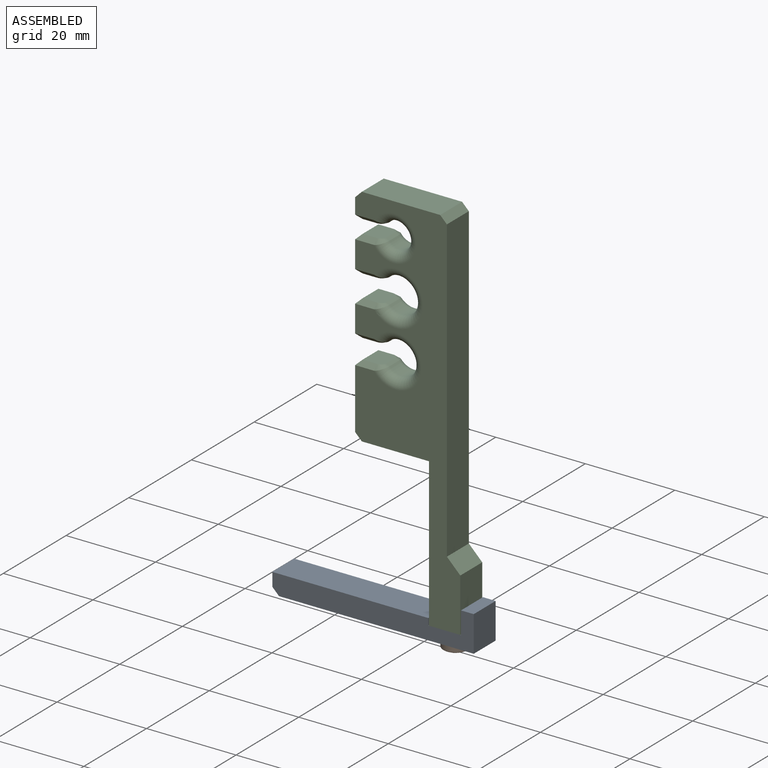
[diagram: assembled view]
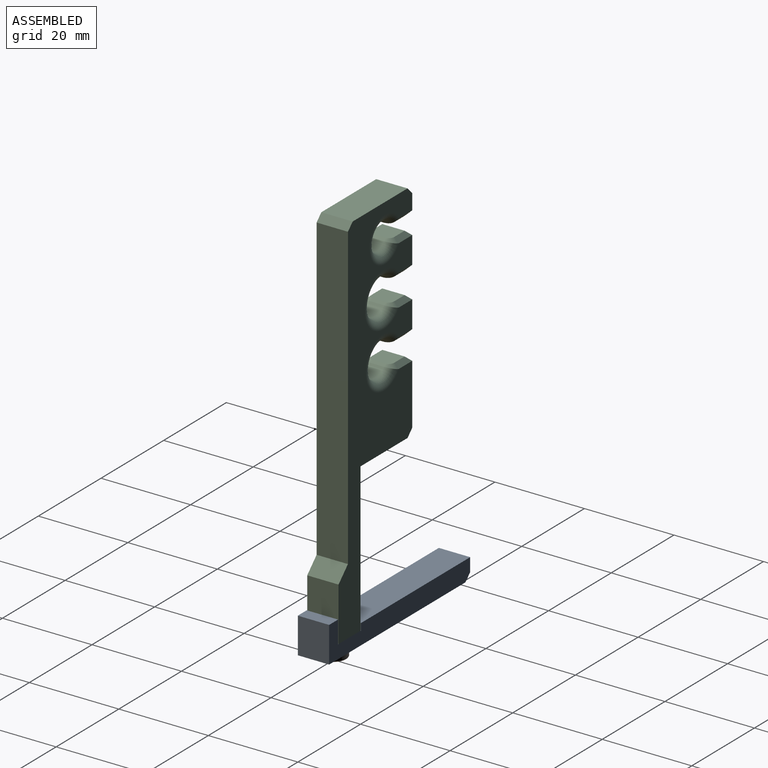
[diagram: assembled view, second angle]
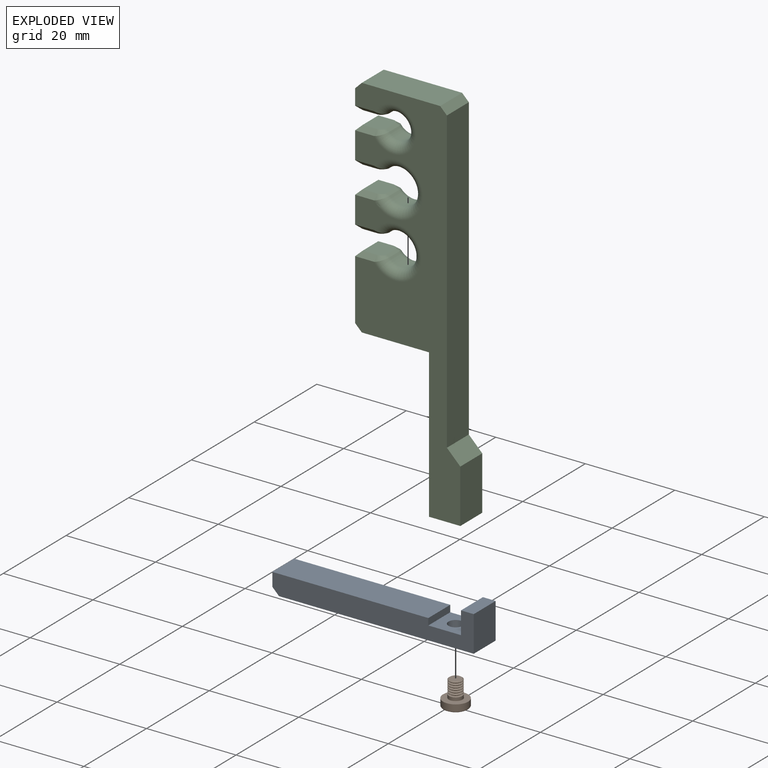
[diagram: exploded view]
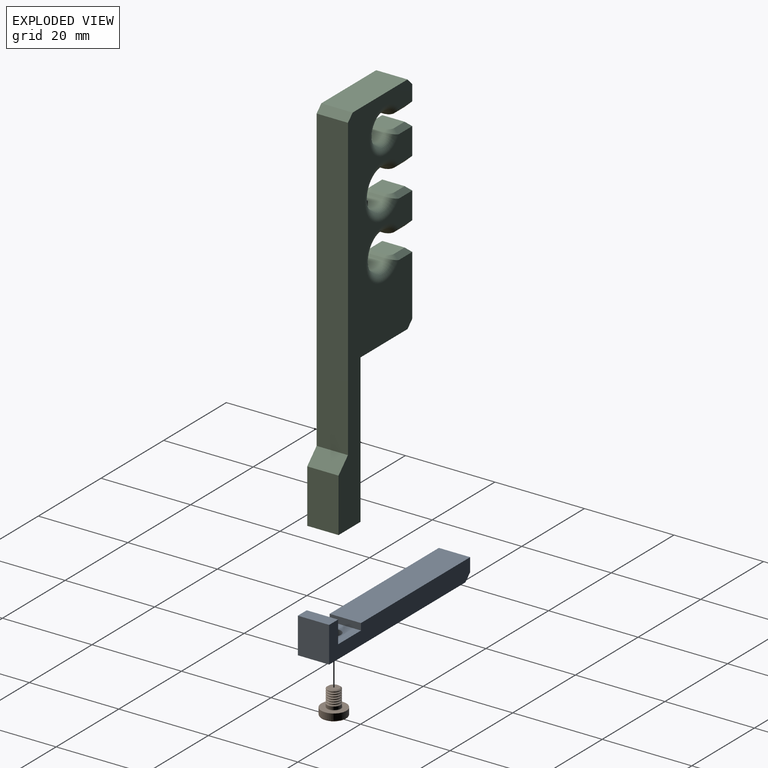
[diagram: exploded view, second angle]
ASSEMBLY  parts=3 mates=2
PART A: 12 faces, bbox 45x7x8 mm
  f0: plane 7.3x7mm, normal (0,0,1), area 43.1mm2, adj f1,f7,f8,f9,f11
  f1: plane 7x1.5mm, normal (1,0,0), area 10.5mm2, adj f0,f2,f8,f9
  f2: plane 34.85x7mm, normal (0,0,1), area 243.9mm2, adj f1,f3,f8,f9
  f3: plane 7x3mm, normal (-1,0,0), area 21mm2, adj f2,f8,f9,f10
  f4: plane 43.5x7mm, normal (0,0,-1), area 296.5mm2, adj f5,f8,f9,f10,f11
  f5: plane 8x7mm, normal (1,0,0), area 56mm2, adj f4,f6,f8,f9
  f6: plane 7x2.85mm, normal (0,0,1), area 19.9mm2, adj f5,f7,f8,f9
  f7: plane 7x5mm, normal (-1,0,0), area 35mm2, adj f0,f6,f8,f9
  f8: plane 45x8mm, normal (0,-1,0), area 200.4mm2, adj f0,f1,f2,f3,f4,f5,f6,f7
  f9: plane 45x8mm, normal (0,1,0), area 200.4mm2, adj f0,f1,f2,f3,f4,f5,f6,f7
  f10: plane 7x1.5mm, normal (-0.71,0,-0.71), area 14.8mm2, adj f3,f4,f8,f9
  f11: cylinder r=1.6mm len=3.2mm, axis (0,0,1), area 30.2mm2, adj f0,f4
PART B: 81 faces, bbox 6.5x6.2x6.2 mm
  f0: cone r=0mm half-angle=4deg, axis (-1,0,0), area 0mm2, adj f1,f79,f80
  f1: plane 1.62x0.83mm, normal (-0.45,0.89,0), area 1.3mm2, adj f0,f2,f3,f76,f77,f78,f79
  f2: plane 0.19x0.11mm, normal (-1,0,0), area 0mm2, adj f1,f78,f80
  f3: plane 0.19x0.11mm, normal (-1,0,0), area 0mm2, adj f1,f4,f76
  f4: cone r=0mm half-angle=72deg, axis (-1,0,0), area 0.5mm2, adj f3,f5,f70,f71,f72,f73,f74,f75
  f5: cone r=0mm half-angle=4deg, axis (-1,0,0), area 0.3mm2, adj f4,f6,f76,f77
  f6: plane 1.75x0.94mm, normal (0,1,0), area 0.7mm2, adj f5,f7,f70,f77
  f7: plane 1.71x0.92mm, normal (-0.45,0,-0.89), area 1.3mm2, adj f6,f8,f9,f70,f71,f72,f77
  f8: plane 1.75x0.94mm, normal (0,-1,0), area 0.7mm2, adj f7,f9,f72,f73
  f9: sphere r=5mm, area 10.5mm2, adj f7,f8,f10,f11,f13,f14,f15,f17
  f10: plane 1.75x0.94mm, normal (0,0,-1), area 0.7mm2, adj f9,f11,f73,f74
  f11: plane 1.71x0.92mm, normal (-0.45,-0.89,0), area 1.3mm2, adj f9,f10,f12,f13,f74,f75,f80
  f12: plane 0.19x0.11mm, normal (-1,0,0), area 0mm2, adj f11,f13,f80
  f13: plane 1.75x0.94mm, normal (0,0,1), area 0.7mm2, adj f9,f11,f12,f14
  f14: cone r=0mm half-angle=4deg, axis (-1,0,0), area 0.3mm2, adj f9,f13,f15,f80
  f15: plane 1.75x0.94mm, normal (0,-1,0), area 0.7mm2, adj f9,f14,f16,f17
  f16: plane 0.19x0.11mm, normal (-1,0,0), area 0mm2, adj f15,f17,f80
  f17: plane 1.71x0.92mm, normal (-0.45,0,0.89), area 1.3mm2, adj f9,f15,f16,f18,f19,f20,f77
  f18: cone r=0mm half-angle=4deg, axis (-1,0,0), area 0mm2, adj f17,f80
  f19: plane 0.19x0.11mm, normal (-1,0,0), area 0mm2, adj f17,f20,f80
  f20: plane 1.75x0.94mm, normal (0,1,0), area 0.7mm2, adj f17,f19,f21,f77
  f21: cone r=0mm half-angle=4deg, axis (-1,0,0), area 0.3mm2, adj f20,f77,f78,f80
  f22: torus R=2.53mm, axis (-1,0,0), area 2.4mm2, adj f9,f23,f69,f77
  f23: cylinder r=2.8mm len=5.6mm, axis (-1,0,0), area 12.3mm2, adj f22,f24,f68
  f24: plane 5.62x5.61mm, normal (1,0,0), area 16.6mm2, adj f23,f25,f67,f68
  f25: torus R=1.6mm, axis (-1,0,0), area 0.8mm2, adj f24,f26,f67
  f26: cylinder r=1.5mm len=3mm, axis (-1,0,0), area 3.3mm2, adj f25,f27,f65,f66
  f27: cone r=0mm half-angle=55deg, axis (-1,0,0), area 1.5mm2, adj f26,f28,f65,f66
  f28: cone r=0mm half-angle=55deg, axis (1,0,0), area 1.5mm2, adj f27,f29,f63,f64
  f29: cylinder r=1.5mm len=3mm, axis (-1,0,0), area 0.5mm2, adj f28,f30,f62,f63,f64
  f30: cone r=0mm half-angle=55deg, axis (-1,0,0), area 1.5mm2, adj f29,f31,f62,f63
  f31: cone r=0mm half-angle=55deg, axis (1,0,0), area 1.5mm2, adj f30,f32,f60,f61
  f32: cylinder r=1.5mm len=3mm, axis (-1,0,0), area 0.5mm2, adj f31,f33,f59,f60,f61
  f33: cone r=0mm half-angle=55deg, axis (-1,0,0), area 1.5mm2, adj f32,f34,f59,f61
  f34: cone r=0mm half-angle=55deg, axis (1,0,0), area 1.5mm2, adj f33,f35,f57,f58
  f35: cylinder r=1.5mm len=3mm, axis (-1,0,0), area 0.5mm2, adj f34,f36,f56,f57,f58
  f36: cone r=0mm half-angle=55deg, axis (-1,0,0), area 1.5mm2, adj f35,f37,f56,f58
  f37: cone r=0mm half-angle=55deg, axis (1,0,0), area 1.5mm2, adj f36,f38,f54,f55
  f38: cylinder r=1.5mm len=3mm, axis (-1,0,0), area 0.5mm2, adj f37,f39,f53,f54,f55
  f39: cone r=0mm half-angle=55deg, axis (-1,0,0), area 1.5mm2, adj f38,f40,f53,f55
  f40: cone r=0mm half-angle=55deg, axis (1,0,0), area 1.5mm2, adj f39,f41,f51,f52
  f41: cylinder r=1.5mm len=3mm, axis (-1,0,0), area 0.5mm2, adj f40,f42,f50,f51,f52
  f42: cone r=0mm half-angle=55deg, axis (-1,0,0), area 1.5mm2, adj f41,f43,f50,f52
  f43: cone r=0mm half-angle=55deg, axis (1,0,0), area 1.5mm2, adj f42,f44,f48,f49
  f44: cylinder r=1.5mm len=3mm, axis (-1,0,0), area 0.5mm2, adj f43,f45,f47,f48,f49
  f45: cone r=0mm half-angle=55deg, axis (-1,0,0), area 1.5mm2, adj f44,f46,f47,f49
  f46: plane 2.45x2.44mm, normal (1,0,0), area 4.7mm2, adj f45,f47
  f47: cone r=0mm half-angle=55deg, axis (-1,0,0), area 1.5mm2, adj f44,f45,f46,f49
  f48: cone r=0mm half-angle=55deg, axis (1,0,0), area 1.5mm2, adj f43,f44,f49,f50
  f49: cylinder r=1.5mm len=3mm, axis (-1,0,0), area 0.5mm2, adj f43,f44,f45,f47,f48
  f50: cone r=0mm half-angle=55deg, axis (-1,0,0), area 1.5mm2, adj f41,f42,f48,f52
  f51: cone r=0mm half-angle=55deg, axis (1,0,0), area 1.5mm2, adj f40,f41,f52,f53
  f52: cylinder r=1.5mm len=3mm, axis (-1,0,0), area 0.5mm2, adj f40,f41,f42,f50,f51
  f53: cone r=0mm half-angle=55deg, axis (-1,0,0), area 1.5mm2, adj f38,f39,f51,f55
  f54: cone r=0mm half-angle=55deg, axis (1,0,0), area 1.5mm2, adj f37,f38,f55,f56
  f55: cylinder r=1.5mm len=3mm, axis (-1,0,0), area 0.5mm2, adj f37,f38,f39,f53,f54
  f56: cone r=0mm half-angle=55deg, axis (-1,0,0), area 1.5mm2, adj f35,f36,f54,f58
  f57: cone r=0mm half-angle=55deg, axis (1,0,0), area 1.5mm2, adj f34,f35,f58,f59
  f58: cylinder r=1.5mm len=3mm, axis (-1,0,0), area 0.5mm2, adj f34,f35,f36,f56,f57
  f59: cone r=0mm half-angle=55deg, axis (-1,0,0), area 1.5mm2, adj f32,f33,f57,f61
  f60: cone r=0mm half-angle=55deg, axis (1,0,0), area 1.5mm2, adj f31,f32,f61,f62
  f61: cylinder r=1.5mm len=3mm, axis (-1,0,0), area 0.5mm2, adj f31,f32,f33,f59,f60
  f62: cone r=0mm half-angle=55deg, axis (-1,0,0), area 1.5mm2, adj f29,f30,f60,f63
  f63: cylinder r=1.5mm len=3mm, axis (-1,0,0), area 0.5mm2, adj f28,f29,f30,f62,f64
  f64: cone r=0mm half-angle=55deg, axis (1,0,0), area 1.5mm2, adj f28,f29,f63,f65
  f65: cone r=0mm half-angle=55deg, axis (-1,0,0), area 1.5mm2, adj f26,f27,f64,f66
  f66: cylinder r=1.5mm len=3mm, axis (-1,0,0), area 3.3mm2, adj f26,f27,f65,f67
  f67: torus R=1.6mm, axis (-1,0,0), area 0.8mm2, adj f24,f25,f66
  f68: cylinder r=2.8mm len=5.6mm, axis (-1,0,0), area 12.3mm2, adj f23,f24,f69
  f69: torus R=2.53mm, axis (-1,0,0), area 2.4mm2, adj f9,f22,f68,f77
  f70: plane 0.19x0.11mm, normal (-1,0,0), area 0mm2, adj f4,f6,f7
  f71: cone r=0mm half-angle=4deg, axis (-1,0,0), area 0mm2, adj f4,f7
  f72: plane 0.19x0.11mm, normal (-1,0,0), area 0mm2, adj f4,f7,f8
  f73: cone r=0mm half-angle=4deg, axis (-1,0,0), area 0.3mm2, adj f4,f8,f9,f10
  f74: plane 0.19x0.11mm, normal (-1,0,0), area 0mm2, adj f4,f10,f11
  f75: cone r=0mm half-angle=4deg, axis (-1,0,0), area 0mm2, adj f4,f11
  f76: plane 1.75x0.94mm, normal (0,0,-1), area 0.7mm2, adj f1,f3,f5,f77
  f77: sphere r=5mm, area 10.5mm2, adj f1,f5,f6,f7,f9,f17,f20,f21
  f78: plane 1.75x0.94mm, normal (0,0,1), area 0.7mm2, adj f1,f2,f21,f77
  f79: cone r=0mm half-angle=4deg, axis (-1,0,0), area 0mm2, adj f0,f1,f4
  f80: cone r=0mm half-angle=72deg, axis (-1,0,0), area 0.5mm2, adj f0,f2,f4,f11,f12,f14,f16,f18
PART C: 69 faces, bbox 23.6x7.1x83.7 mm
  f0: plane 13.5x7mm, normal (-1,0,0), area 94.5mm2, adj f19,f20,f61,f65
  f1: plane 15.01x7mm, normal (0,0,-1), area 105.1mm2, adj f2,f19,f20,f65
  f2: plane 33.2x7mm, normal (-1,0,0), area 232.4mm2, adj f1,f3,f19,f20
  f3: plane 7x7mm, normal (0,0,-1), area 41mm2, adj f2,f4,f19,f20,f66
  f4: plane 12x7mm, normal (1,0,0), area 84mm2, adj f3,f19,f20,f68
  f5: plane 67.1x7mm, normal (1,0,0), area 469.7mm2, adj f19,f20,f64,f68
  f6: plane 17.51x7mm, normal (0,0,1), area 122.6mm2, adj f19,f20,f63,f64
  f7: plane 7x3.5mm, normal (-1,0,0), area 24.5mm2, adj f19,f20,f30,f63
  f8: plane 5.05x4.51mm, normal (0,0,-1), area 21.8mm2, adj f27,f28,f29,f30,f31,f32
  f9: cylinder r=3mm len=6mm, axis (0,1,0), area 44.4mm2, adj f23,f26,f29,f47
  f10: plane 5.05x4.51mm, normal (0,0,1), area 21.8mm2, adj f45,f46,f47,f48,f49,f50
  f11: plane 7x6mm, normal (-1,0,0), area 42mm2, adj f19,f20,f36,f48
  f12: plane 5.06x4.62mm, normal (0,0,-1), area 22.2mm2, adj f33,f34,f35,f36,f37,f38
  f13: cylinder r=4mm len=8mm, axis (0,1,0), area 56.8mm2, adj f22,f25,f35,f52
  f14: plane 5.06x4.62mm, normal (0,0,1), area 22.2mm2, adj f51,f52,f53,f54,f55,f56
  f15: plane 7x6mm, normal (-1,0,0), area 42mm2, adj f19,f20,f42,f55
  f16: plane 5.06x4.58mm, normal (0,0,-1), area 22.1mm2, adj f39,f40,f41,f42,f43,f44
  f17: cylinder r=3.75mm len=7.5mm, axis (0,1,0), area 54.1mm2, adj f21,f24,f41,f58
  f18: plane 5.06x4.58mm, normal (0,0,1), area 22.1mm2, adj f57,f58,f59,f60,f61,f62
  f19: plane 83.6x23.51mm, normal (0,-1,0), area 841.6mm2, adj f0,f1,f2,f3,f4,f5,f6,f7
  f20: plane 83.6x23.51mm, normal (0,1,0), area 841.6mm2, adj f0,f1,f2,f3,f4,f5,f6,f7
  f21: torus R=5.75mm, axis (0,-1,0), area 69.8mm2, adj f17,f20,f39,f57
  f22: torus R=6mm, axis (0,-1,0), area 72.7mm2, adj f13,f20,f33,f51
  f23: torus R=5mm, axis (0,-1,0), area 59.7mm2, adj f9,f20,f27,f45
  f24: torus R=5.75mm, axis (0,-1,0), area 69.8mm2, adj f17,f19,f43,f60
  f25: torus R=6mm, axis (0,-1,0), area 72.7mm2, adj f13,f19,f37,f54
  f26: torus R=5mm, axis (0,-1,0), area 59.7mm2, adj f9,f19,f31,f49
  f27: bspline ~2.02x1.99mm, area 2.7mm2, adj f8,f23,f28,f29
  f28: plane 4.27x1mm, normal (0,0.71,-0.71), area 5.3mm2, adj f8,f20,f27,f30
  f29: plane 3x0.78mm, normal (0.43,0,-0.9), area 2.6mm2, adj f8,f9,f27,f31
  f30: plane 7x1mm, normal (-0.71,0,-0.71), area 8.5mm2, adj f7,f8,f28,f32
  f31: bspline ~2.02x1.99mm, area 2.7mm2, adj f8,f26,f29,f32
  f32: plane 4.27x1mm, normal (0,-0.71,-0.71), area 5.3mm2, adj f8,f19,f30,f31
  f33: bspline ~2.02x2mm, area 2.6mm2, adj f12,f22,f34,f35
  f34: plane 4.25x1mm, normal (0,0.71,-0.71), area 5.3mm2, adj f12,f20,f33,f36
  f35: plane 3x0.71mm, normal (0.39,0,-0.92), area 2.3mm2, adj f12,f13,f33,f37
  f36: plane 7x1mm, normal (-0.71,0,-0.71), area 8.5mm2, adj f11,f12,f34,f38
  f37: bspline ~2.02x2mm, area 2.6mm2, adj f12,f25,f35,f38
  f38: plane 4.25x1mm, normal (0,-0.71,-0.71), area 5.3mm2, adj f12,f19,f36,f37
  f39: bspline ~2.01x2mm, area 2.7mm2, adj f16,f21,f40,f41
  f40: plane 4.26x1mm, normal (0,0.71,-0.71), area 5.3mm2, adj f16,f20,f39,f42
  f41: plane 3x0.74mm, normal (0.4,0,-0.91), area 2.4mm2, adj f16,f17,f39,f43
  f42: plane 7x1mm, normal (-0.71,0,-0.71), area 8.5mm2, adj f15,f16,f40,f44
  f43: bspline ~2.01x2.01mm, area 2.7mm2, adj f16,f24,f41,f44
  f44: plane 4.26x1mm, normal (0,-0.71,-0.71), area 5.3mm2, adj f16,f19,f42,f43
  f45: bspline ~2.02x1.99mm, area 2.7mm2, adj f10,f23,f46,f47
  f46: plane 4.27x1mm, normal (0,0.71,0.71), area 5.3mm2, adj f10,f20,f45,f48
  f47: plane 3x0.78mm, normal (0.43,0,0.9), area 2.6mm2, adj f9,f10,f45,f49
  f48: plane 7x1mm, normal (-0.71,0,0.71), area 8.5mm2, adj f10,f11,f46,f50
  f49: bspline ~2.02x1.99mm, area 2.7mm2, adj f10,f26,f47,f50
  f50: plane 4.27x1mm, normal (0,-0.71,0.71), area 5.3mm2, adj f10,f19,f48,f49
  f51: bspline ~2.02x2mm, area 2.6mm2, adj f14,f22,f52,f53
  f52: plane 3x0.71mm, normal (0.39,0,0.92), area 2.3mm2, adj f13,f14,f51,f54
  f53: plane 4.25x1mm, normal (0,0.71,0.71), area 5.3mm2, adj f14,f20,f51,f55
  f54: bspline ~2.02x2mm, area 2.6mm2, adj f14,f25,f52,f56
  f55: plane 7x1mm, normal (-0.71,0,0.71), area 8.5mm2, adj f14,f15,f53,f56
  f56: plane 4.25x1mm, normal (0,-0.71,0.71), area 5.3mm2, adj f14,f19,f54,f55
  f57: bspline ~2.01x2.01mm, area 2.7mm2, adj f18,f21,f58,f59
  f58: plane 3x0.74mm, normal (0.4,0,0.91), area 2.4mm2, adj f17,f18,f57,f60
  f59: plane 4.26x1mm, normal (0,0.71,0.71), area 5.3mm2, adj f18,f20,f57,f61
  f60: bspline ~2.01x2mm, area 2.7mm2, adj f18,f24,f58,f62
  f61: plane 7x1mm, normal (-0.71,0,0.71), area 8.5mm2, adj f0,f18,f59,f62
  f62: plane 4.26x1mm, normal (0,-0.71,0.71), area 5.3mm2, adj f18,f19,f60,f61
  f63: plane 7x1.5mm, normal (-0.71,0,0.71), area 14.8mm2, adj f6,f7,f19,f20
  f64: plane 7x1.5mm, normal (0.71,0,0.71), area 14.8mm2, adj f5,f6,f19,f20
  f65: plane 7x1.5mm, normal (-0.71,0,-0.71), area 14.8mm2, adj f0,f1,f19,f20
  f66: cylinder r=1.6mm len=10mm, axis (0,0,-1), area 100.5mm2, adj f3,f67
  f67: plane 3.2x3.2mm, normal (0,0,-1), area 8mm2, adj f66
  f68: plane 7x3mm, normal (0.71,0,0.71), area 29.7mm2, adj f4,f5,f19,f20
PLACE A at identity
PLACE B rot(axis=(-0.58,-0.58,-0.58),120deg) t=(3.5,-3.5,-46.1)mm
PLACE C t=(0,0,-7.5)mm fixed
MATE fastened C.f66 <-> A.f11  axis (0,0,-1) through (3.5,-3.5,-40.7)mm
MATE revolute B.f27 <-> A.f11  axis (0,0,1) through (3.5,-3.5,-43.7)mm
